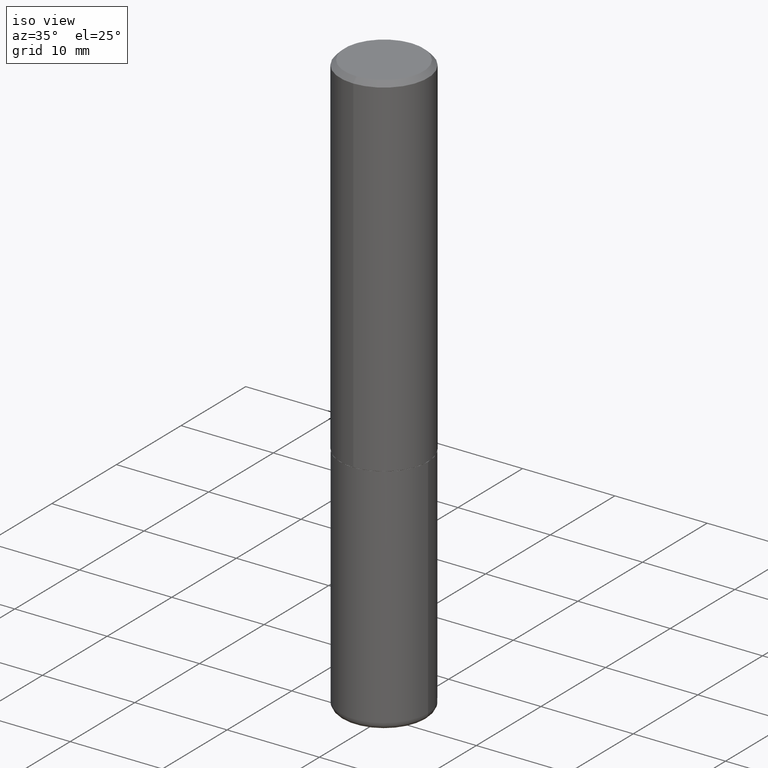
[diagram: clean part render]
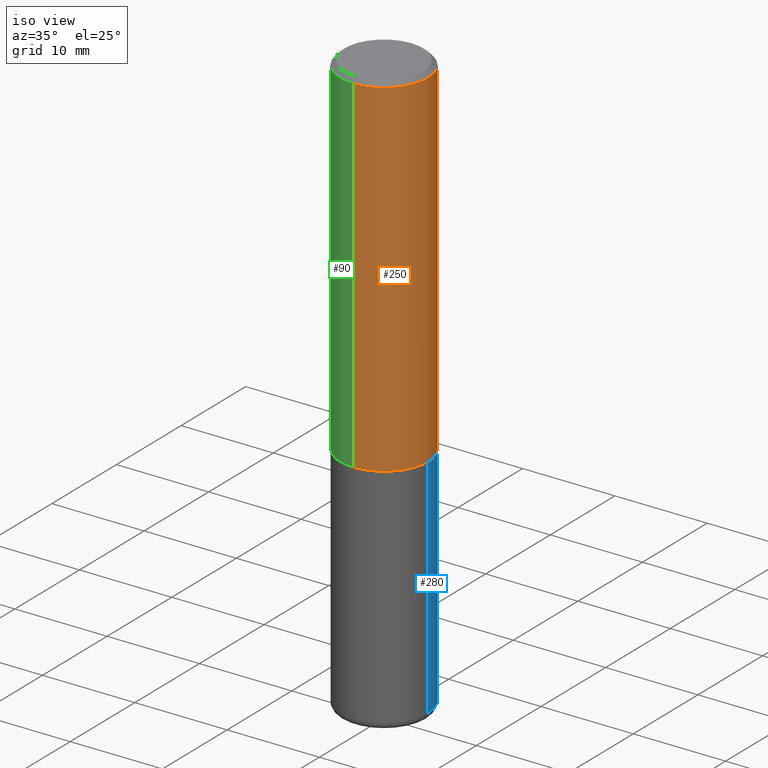
[diagram: same view with three faces highlighted in distinct colors, each labeled with its STEP entity id]
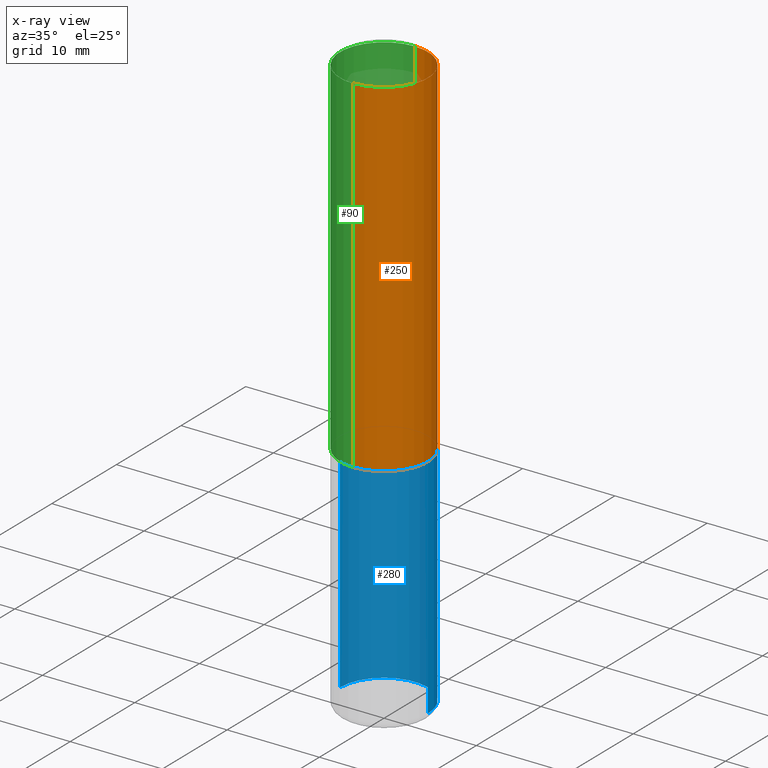
[diagram: x-ray of the same camera — body ghosted, the three highlighted faces saturated]
A machine part, iso view with three faces highlighted in distinct colors.
The next image is the same camera in x-ray (body ghosted, the three faces saturated) — at least one of them is partly hidden behind the body in this view.
Their STEP definitions:

[orange] entity #250 — the highlighted cylindrical surface (partial cylindrical patch) has radius 4.7625 mm, axis along (-0, 0, 1).
#2 = EDGE_CURVE ( 'NONE', #80, #106, #15, .T. ) ;
#15 = CIRCLE ( 'NONE', #187, 0.1875000000000001943 ) ;
#20 = AXIS2_PLACEMENT_3D ( 'NONE', #357, #133, #35 ) ;
#35 = DIRECTION ( 'NONE',  ( -6.982962677686266711E-15, -1.000000000000000000, 3.490942761243906423E-15 ) ) ;
#37 = CARTESIAN_POINT ( 'NONE',  ( 1.332267629550188243E-15, 0.1875000000000000833, -6.545517677332327747E-16 ) ) ;
#65 = CARTESIAN_POINT ( 'NONE',  ( -1.286343374582161379E-15, -0.1875000000000000555, -0.01999999999999938979 ) ) ;
#66 = CARTESIAN_POINT ( 'NONE',  ( 4.891689785825187560E-31, -6.981885522487828820E-17, -0.02000000000000004205 ) ) ;
#80 = VERTEX_POINT ( 'NONE', #315 ) ;
#89 = VERTEX_POINT ( 'NONE', #122 ) ;
#101 = DIRECTION ( 'NONE',  ( -2.445844892912588876E-29, 3.490942761243906817E-15, 1.000000000000000000 ) ) ;
#106 = VERTEX_POINT ( 'NONE', #177 ) ;
#122 = CARTESIAN_POINT ( 'NONE',  ( 1.309305502066175205E-15, 0.1874999999999999167, -0.02000000000000069431 ) ) ;
#133 = DIRECTION ( 'NONE',  ( -2.445844892912588876E-29, 3.490942761243906817E-15, 1.000000000000000000 ) ) ;
#139 = LINE ( 'NONE', #37, #217 ) ;
#146 = VERTEX_POINT ( 'NONE', #65 ) ;
#149 = LINE ( 'NONE', #281, #205 ) ;
#154 = AXIS2_PLACEMENT_3D ( 'NONE', #66, #101, #291 ) ;
#174 = EDGE_CURVE ( 'NONE', #80, #146, #149, .T. ) ;
#177 = CARTESIAN_POINT ( 'NONE',  ( 1.332267629550206781E-15, 0.1874999999999949485, -1.499000000000000554 ) ) ;
#179 = FACE_OUTER_BOUND ( 'NONE', #192, .T. ) ;
#187 = AXIS2_PLACEMENT_3D ( 'NONE', #207, #380, #347 ) ;
#192 = EDGE_LOOP ( 'NONE', ( #400, #209, #232, #248 ) ) ;
#201 = EDGE_CURVE ( 'NONE', #146, #89, #342, .T. ) ;
#205 = VECTOR ( 'NONE', #413, 39.37007874015748143 ) ;
#207 = CARTESIAN_POINT ( 'NONE',  ( 3.666321494475970828E-29, -5.232923199104616895E-15, -1.499000000000000110 ) ) ;
#209 = ORIENTED_EDGE ( 'NONE', *, *, #372, .T. ) ;
#217 = VECTOR ( 'NONE', #292, 39.37007874015748143 ) ;
#232 = ORIENTED_EDGE ( 'NONE', *, *, #201, .F. ) ;
#248 = ORIENTED_EDGE ( 'NONE', *, *, #174, .F. ) ;
#250 = ADVANCED_FACE ( 'NONE', ( #179 ), #289, .T. ) ;
#281 = CARTESIAN_POINT ( 'NONE',  ( -1.309305502066175600E-15, -0.1875000000000000833, 6.545517677332327747E-16 ) ) ;
#289 = CYLINDRICAL_SURFACE ( 'NONE', #20, 0.1875000000000000833 ) ;
#291 = DIRECTION ( 'NONE',  ( -6.982962677686266711E-15, -1.000000000000000000, 3.483106191921935949E-15 ) ) ;
#292 = DIRECTION ( 'NONE',  ( -2.445844892912589156E-29, 3.490942761243906423E-15, 1.000000000000000000 ) ) ;
#315 = CARTESIAN_POINT ( 'NONE',  ( -1.309305502066139509E-15, -0.1875000000000054123, -1.498999999999999444 ) ) ;
#342 = CIRCLE ( 'NONE', #154, 0.1874999999999999722 ) ;
#347 = DIRECTION ( 'NONE',  ( -6.982962677686265922E-15, -1.000000000000000000, 2.913971193241877611E-15 ) ) ;
#357 = CARTESIAN_POINT ( 'NONE',  ( 0.000000000000000000, 0.000000000000000000, 0.000000000000000000 ) ) ;
#372 = EDGE_CURVE ( 'NONE', #106, #89, #139, .T. ) ;
#380 = DIRECTION ( 'NONE',  ( -2.445844892912588876E-29, 3.490942761243906817E-15, 1.000000000000000000 ) ) ;
#400 = ORIENTED_EDGE ( 'NONE', *, *, #2, .T. ) ;
#413 = DIRECTION ( 'NONE',  ( -2.445844892912589156E-29, 3.490942761243906423E-15, 1.000000000000000000 ) ) ;

[blue] entity #280 — the highlighted cylindrical surface (partial cylindrical patch) has radius 4.7625 mm, axis along (-0, 0, 1).
#3 = CYLINDRICAL_SURFACE ( 'NONE', #399, 0.1875000000000000555 ) ;
#40 = LINE ( 'NONE', #43, #163 ) ;
#43 = CARTESIAN_POINT ( 'NONE',  ( 0.1875000000000000555, -1.309305502066175205E-15, 9.142831454617382414E-30 ) ) ;
#47 = VECTOR ( 'NONE', #340, 39.37007874015748143 ) ;
#50 = EDGE_CURVE ( 'NONE', #282, #155, #389, .T. ) ;
#51 = ORIENTED_EDGE ( 'NONE', *, *, #346, .F. ) ;
#52 = DIRECTION ( 'NONE',  ( 1.000000000000000000, -6.982962677686266711E-15, 0.000000000000000000 ) ) ;
#73 = CARTESIAN_POINT ( 'NONE',  ( 0.1875000000000000278, -6.546527510330893974E-15, -1.500000000000000222 ) ) ;
#97 = DIRECTION ( 'NONE',  ( 1.000000000000000000, -6.982962677686265922E-15, 0.000000000000000000 ) ) ;
#120 = EDGE_CURVE ( 'NONE', #338, #155, #386, .T. ) ;
#125 = CARTESIAN_POINT ( 'NONE',  ( 3.668203209277704895E-29, -5.237222008264718177E-15, -1.500000000000000222 ) ) ;
#130 = CARTESIAN_POINT ( 'NONE',  ( 0.000000000000000000, 0.000000000000000000, 0.000000000000000000 ) ) ;
#155 = VERTEX_POINT ( 'NONE', #254 ) ;
#163 = VECTOR ( 'NONE', #166, 39.37007874015748143 ) ;
#166 = DIRECTION ( 'NONE',  ( -2.445468806185136877E-29, 3.491481338843145188E-15, 1.000000000000000000 ) ) ;
#167 = EDGE_LOOP ( 'NONE', ( #393, #171, #371, #51 ) ) ;
#171 = ORIENTED_EDGE ( 'NONE', *, *, #120, .T. ) ;
#218 = FACE_OUTER_BOUND ( 'NONE', #167, .T. ) ;
#243 = CIRCLE ( 'NONE', #284, 0.1875000000000000555 ) ;
#252 = CARTESIAN_POINT ( 'NONE',  ( 6.040307951277287977E-29, -8.623958906942569995E-15, -2.470000000000000195 ) ) ;
#254 = CARTESIAN_POINT ( 'NONE',  ( -0.1875000000000000278, -5.598322828053456632E-15, -1.500000000000000222 ) ) ;
#255 = CARTESIAN_POINT ( 'NONE',  ( -0.1875000000000000555, 1.332267629550188243E-15, -9.223003294227950793E-30 ) ) ;
#267 = EDGE_CURVE ( 'NONE', #385, #338, #243, .T. ) ;
#280 = ADVANCED_FACE ( 'NONE', ( #218 ), #3, .T. ) ;
#282 = VERTEX_POINT ( 'NONE', #73 ) ;
#284 = AXIS2_PLACEMENT_3D ( 'NONE', #252, #387, #97 ) ;
#295 = CARTESIAN_POINT ( 'NONE',  ( 0.1875000000000001943, -9.933264409008746581E-15, -2.470000000000000195 ) ) ;
#324 = CARTESIAN_POINT ( 'NONE',  ( -0.1875000000000001943, -7.291691277392382147E-15, -2.470000000000000195 ) ) ;
#338 = VERTEX_POINT ( 'NONE', #324 ) ;
#340 = DIRECTION ( 'NONE',  ( -2.445468806185136877E-29, 3.491481338843145188E-15, 1.000000000000000000 ) ) ;
#346 = EDGE_CURVE ( 'NONE', #385, #282, #40, .T. ) ;
#350 = AXIS2_PLACEMENT_3D ( 'NONE', #125, #373, #52 ) ;
#360 = DIRECTION ( 'NONE',  ( -2.445468806185136597E-29, 3.491481338843145583E-15, 1.000000000000000000 ) ) ;
#371 = ORIENTED_EDGE ( 'NONE', *, *, #50, .F. ) ;
#373 = DIRECTION ( 'NONE',  ( -2.445468806185136597E-29, 3.491481338843145583E-15, 1.000000000000000000 ) ) ;
#385 = VERTEX_POINT ( 'NONE', #295 ) ;
#386 = LINE ( 'NONE', #255, #47 ) ;
#387 = DIRECTION ( 'NONE',  ( -2.445468806185136597E-29, 3.491481338843145583E-15, 1.000000000000000000 ) ) ;
#389 = CIRCLE ( 'NONE', #350, 0.1875000000000000278 ) ;
#391 = DIRECTION ( 'NONE',  ( 1.000000000000000000, -6.982962677686265922E-15, 4.876176775795935793E-29 ) ) ;
#393 = ORIENTED_EDGE ( 'NONE', *, *, #267, .T. ) ;
#399 = AXIS2_PLACEMENT_3D ( 'NONE', #130, #360, #391 ) ;

[green] entity #90 — the highlighted cylindrical surface (partial cylindrical patch) has radius 4.7625 mm, axis along (-0, 0, 1).
#29 = FACE_OUTER_BOUND ( 'NONE', #119, .T. ) ;
#30 = DIRECTION ( 'NONE',  ( -6.982962677686266711E-15, -1.000000000000000000, 3.490942761243906423E-15 ) ) ;
#37 = CARTESIAN_POINT ( 'NONE',  ( 1.332267629550188243E-15, 0.1875000000000000833, -6.545517677332327747E-16 ) ) ;
#45 = DIRECTION ( 'NONE',  ( -2.445844892912588876E-29, 3.490942761243906817E-15, 1.000000000000000000 ) ) ;
#56 = CIRCLE ( 'NONE', #188, 0.1874999999999999722 ) ;
#65 = CARTESIAN_POINT ( 'NONE',  ( -1.286343374582161379E-15, -0.1875000000000000555, -0.01999999999999938979 ) ) ;
#69 = ORIENTED_EDGE ( 'NONE', *, *, #372, .F. ) ;
#80 = VERTEX_POINT ( 'NONE', #315 ) ;
#89 = VERTEX_POINT ( 'NONE', #122 ) ;
#90 = ADVANCED_FACE ( 'NONE', ( #29 ), #148, .T. ) ;
#106 = VERTEX_POINT ( 'NONE', #177 ) ;
#119 = EDGE_LOOP ( 'NONE', ( #69, #223, #124, #299 ) ) ;
#122 = CARTESIAN_POINT ( 'NONE',  ( 1.309305502066175205E-15, 0.1874999999999999167, -0.02000000000000069431 ) ) ;
#124 = ORIENTED_EDGE ( 'NONE', *, *, #174, .T. ) ;
#135 = DIRECTION ( 'NONE',  ( -2.445844892912588876E-29, 3.490942761243906817E-15, 1.000000000000000000 ) ) ;
#139 = LINE ( 'NONE', #37, #217 ) ;
#146 = VERTEX_POINT ( 'NONE', #65 ) ;
#148 = CYLINDRICAL_SURFACE ( 'NONE', #253, 0.1875000000000000833 ) ;
#149 = LINE ( 'NONE', #281, #205 ) ;
#156 = CARTESIAN_POINT ( 'NONE',  ( 3.666321494475970828E-29, -5.232923199104616895E-15, -1.499000000000000110 ) ) ;
#174 = EDGE_CURVE ( 'NONE', #80, #146, #149, .T. ) ;
#177 = CARTESIAN_POINT ( 'NONE',  ( 1.332267629550206781E-15, 0.1874999999999949485, -1.499000000000000554 ) ) ;
#180 = CIRCLE ( 'NONE', #301, 0.1875000000000001943 ) ;
#188 = AXIS2_PLACEMENT_3D ( 'NONE', #230, #45, #370 ) ;
#205 = VECTOR ( 'NONE', #413, 39.37007874015748143 ) ;
#217 = VECTOR ( 'NONE', #292, 39.37007874015748143 ) ;
#221 = DIRECTION ( 'NONE',  ( -6.982962677686265922E-15, -1.000000000000000000, 2.913971193241877611E-15 ) ) ;
#223 = ORIENTED_EDGE ( 'NONE', *, *, #233, .T. ) ;
#230 = CARTESIAN_POINT ( 'NONE',  ( 4.891689785825187560E-31, -6.981885522487828820E-17, -0.02000000000000004205 ) ) ;
#233 = EDGE_CURVE ( 'NONE', #106, #80, #180, .T. ) ;
#253 = AXIS2_PLACEMENT_3D ( 'NONE', #383, #279, #30 ) ;
#279 = DIRECTION ( 'NONE',  ( -2.445844892912588876E-29, 3.490942761243906817E-15, 1.000000000000000000 ) ) ;
#281 = CARTESIAN_POINT ( 'NONE',  ( -1.309305502066175600E-15, -0.1875000000000000833, 6.545517677332327747E-16 ) ) ;
#292 = DIRECTION ( 'NONE',  ( -2.445844892912589156E-29, 3.490942761243906423E-15, 1.000000000000000000 ) ) ;
#299 = ORIENTED_EDGE ( 'NONE', *, *, #341, .F. ) ;
#301 = AXIS2_PLACEMENT_3D ( 'NONE', #156, #135, #221 ) ;
#315 = CARTESIAN_POINT ( 'NONE',  ( -1.309305502066139509E-15, -0.1875000000000054123, -1.498999999999999444 ) ) ;
#341 = EDGE_CURVE ( 'NONE', #89, #146, #56, .T. ) ;
#370 = DIRECTION ( 'NONE',  ( -6.982962677686266711E-15, -1.000000000000000000, 3.483106191921935949E-15 ) ) ;
#372 = EDGE_CURVE ( 'NONE', #106, #89, #139, .T. ) ;
#383 = CARTESIAN_POINT ( 'NONE',  ( 0.000000000000000000, 0.000000000000000000, 0.000000000000000000 ) ) ;
#413 = DIRECTION ( 'NONE',  ( -2.445844892912589156E-29, 3.490942761243906423E-15, 1.000000000000000000 ) ) ;